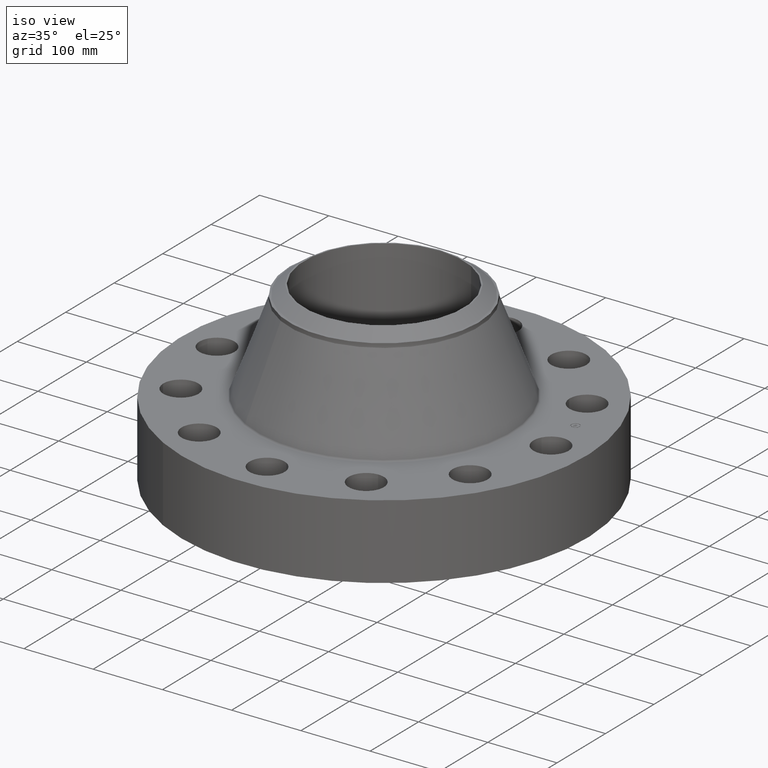
[diagram: clean part render]
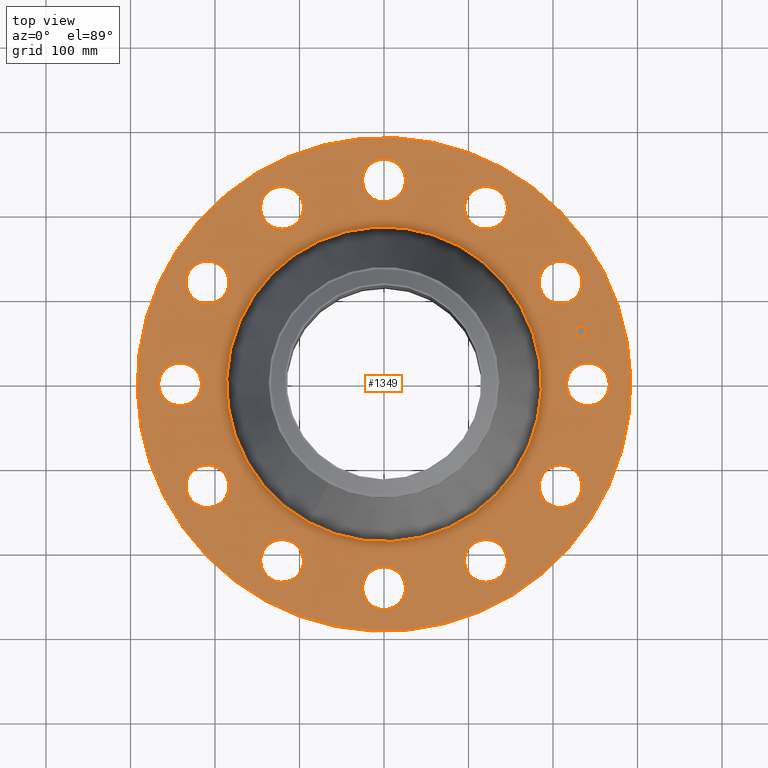
[diagram: tour spotlight — one face highlighted and labeled with its STEP entity id]
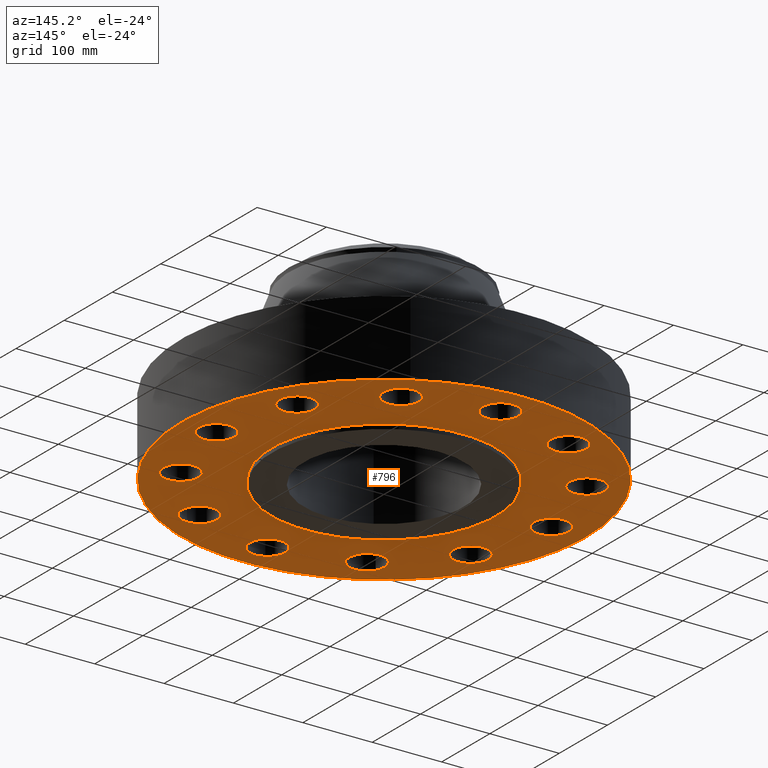
[diagram: tour spotlight — one face highlighted and labeled with its STEP entity id]
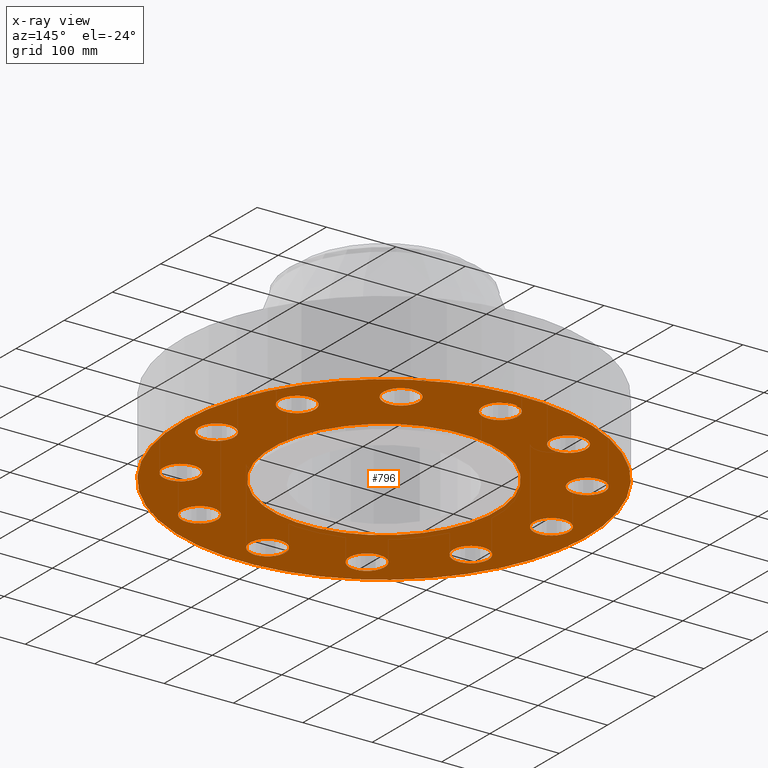
[diagram: x-ray of the same camera — body ghosted, this tour face saturated]
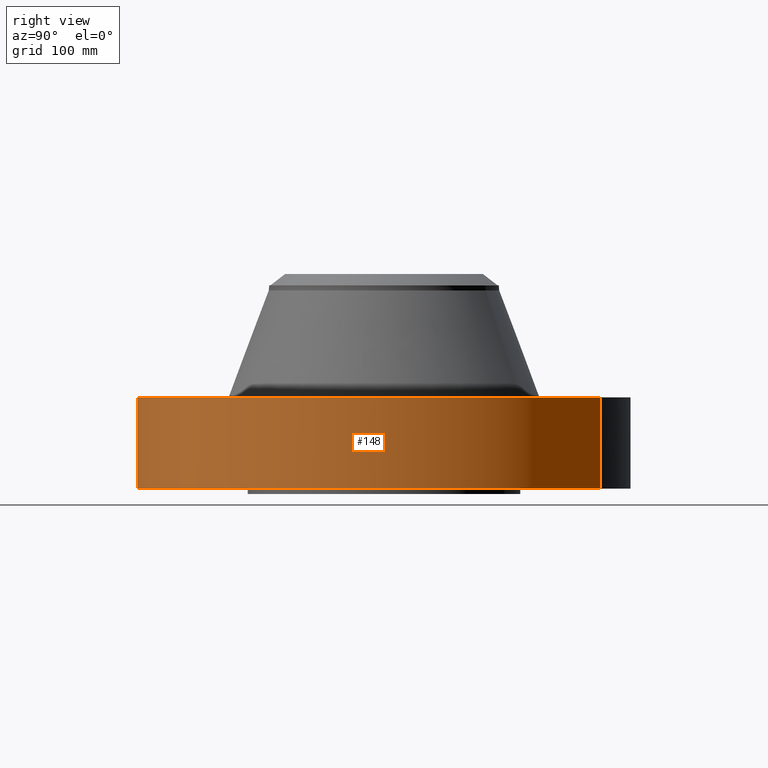
[diagram: tour spotlight — one face highlighted and labeled with its STEP entity id]
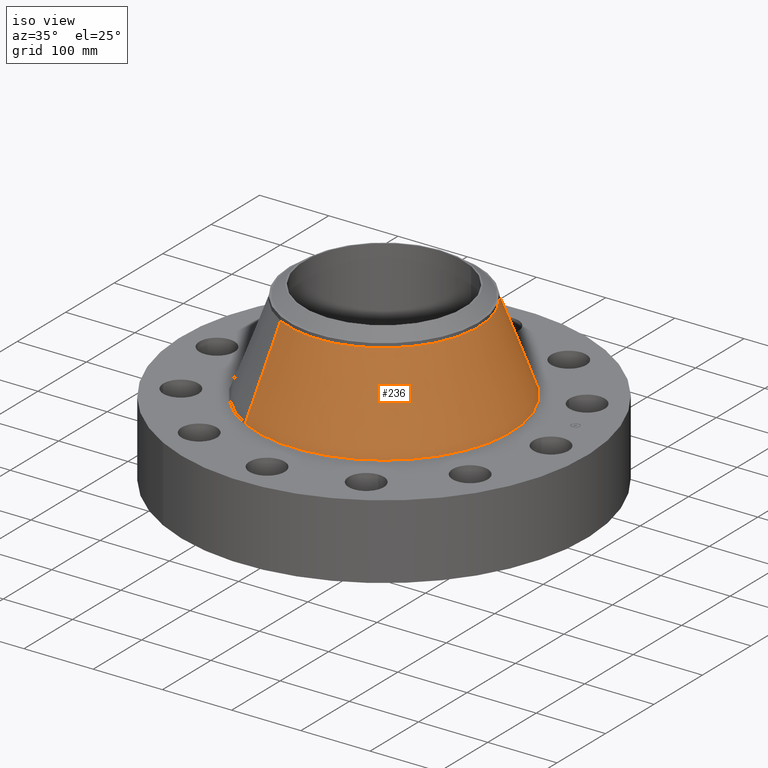
[diagram: tour spotlight — one face highlighted and labeled with its STEP entity id]
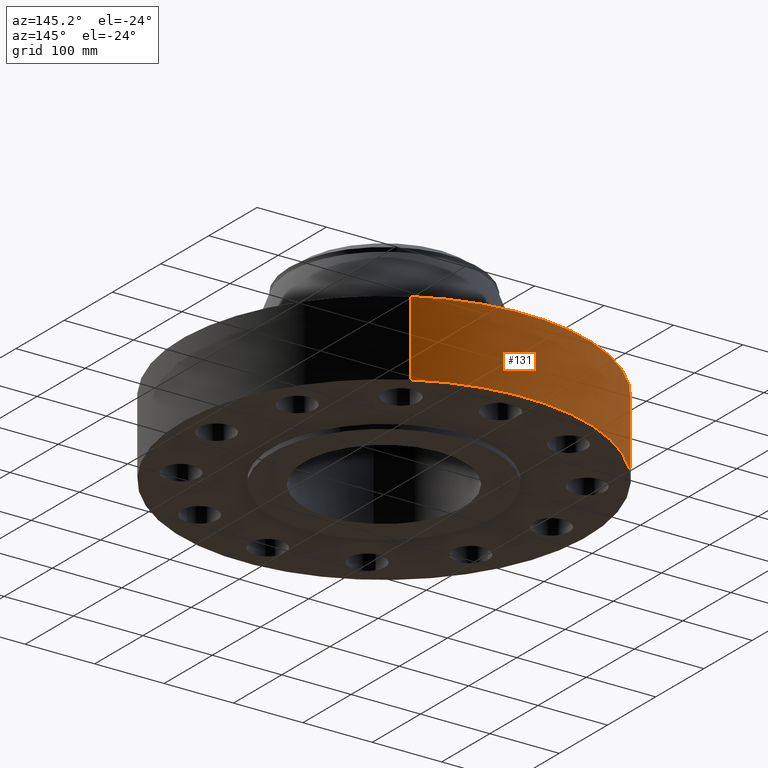
[diagram: tour spotlight — one face highlighted and labeled with its STEP entity id]
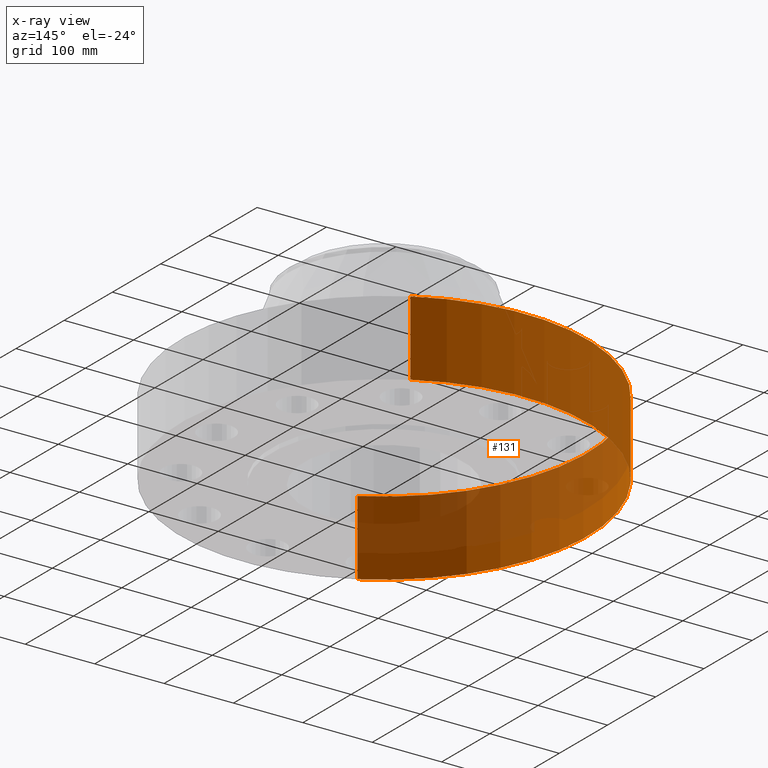
[diagram: x-ray of the same camera — body ghosted, this tour face saturated]
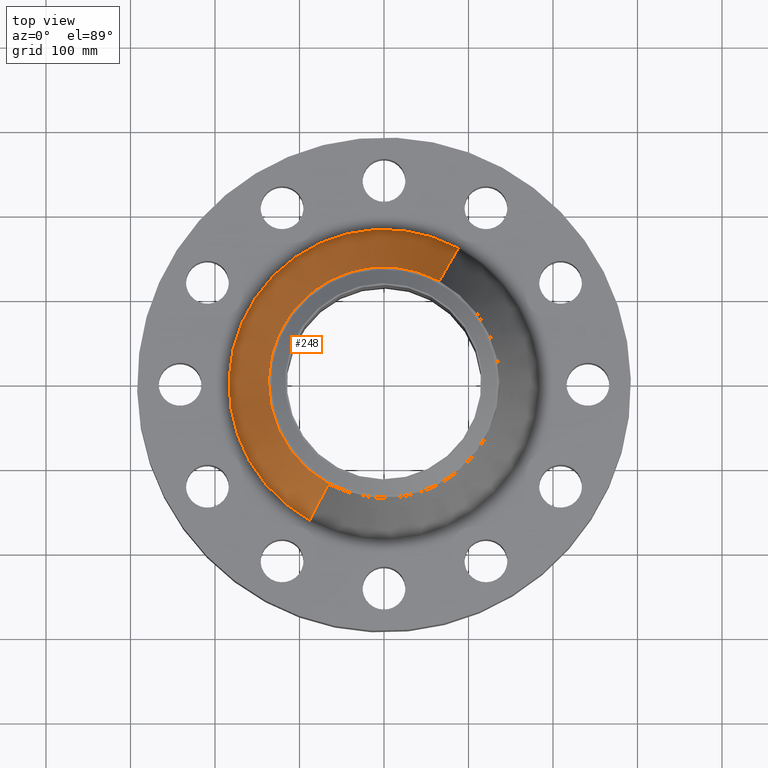
[diagram: tour spotlight — one face highlighted and labeled with its STEP entity id]
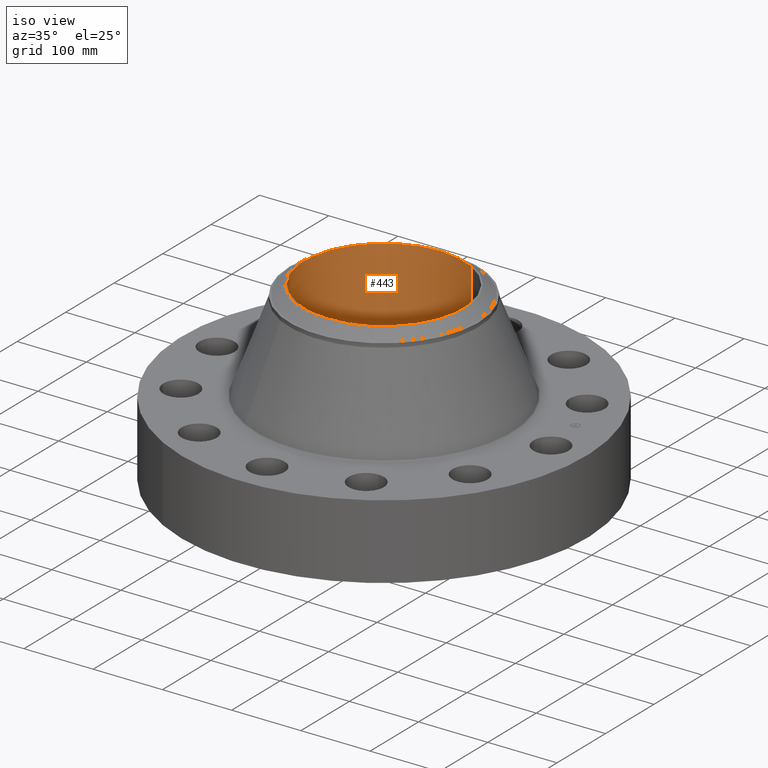
[diagram: tour spotlight — one face highlighted and labeled with its STEP entity id]
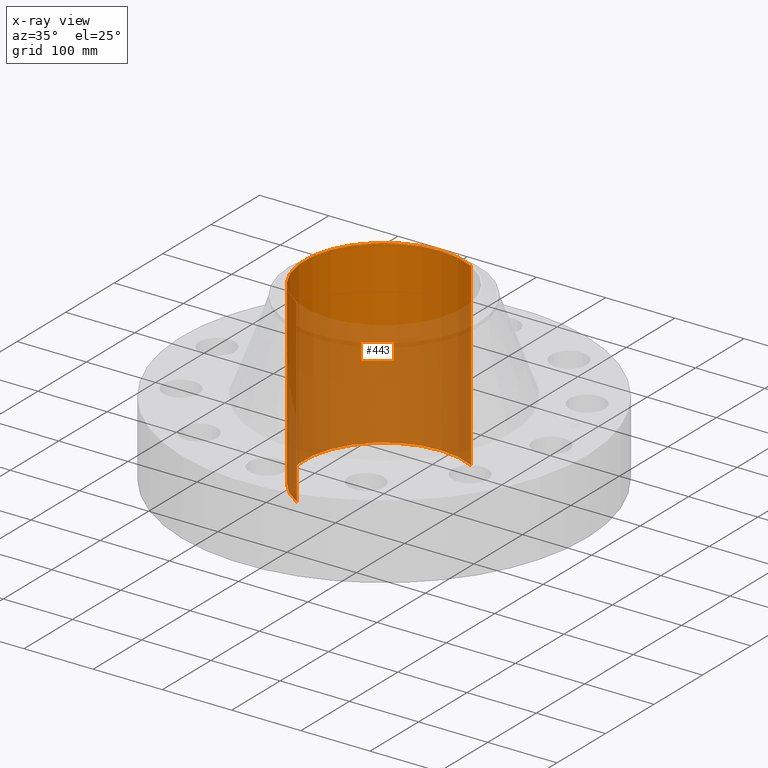
[diagram: x-ray of the same camera — body ghosted, this tour face saturated]
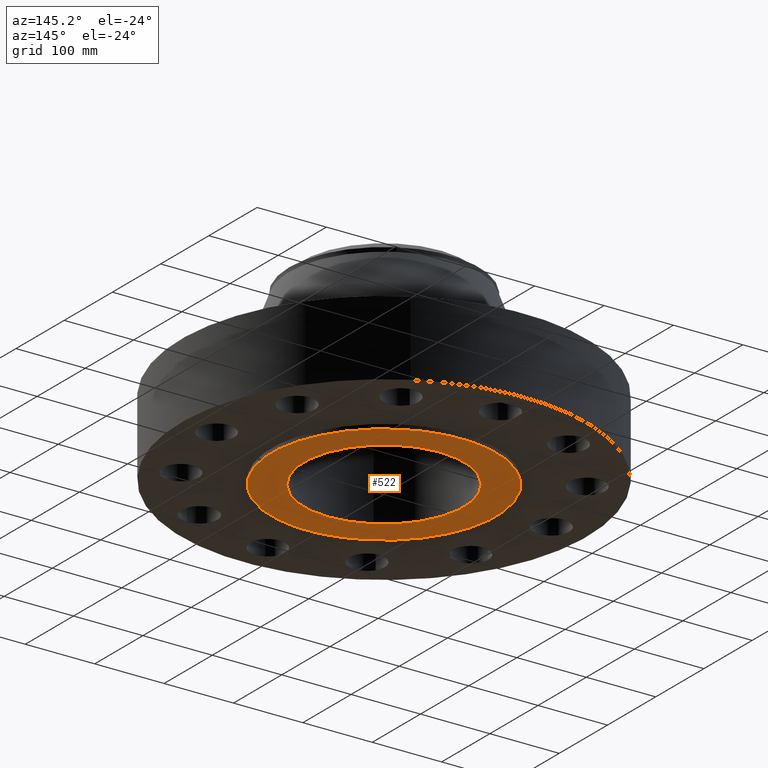
[diagram: tour spotlight — one face highlighted and labeled with its STEP entity id]
A machine part: a face-by-face anatomy tour. The part has 431 B-rep faces; the first image is the clean iso view, then the 8 largest visible faces are spotlighted one at a time (largest first), each with its STEP entity span.

Face 1 — top view, entity #1349. In plain terms, the highlighted planar face has unit normal (0, 0, -1).
Definition (entity closure, byte-faithful):
#65=AXIS2_PLACEMENT_3D('Circle Axis2P3D',#63,#64,$) ;
#82=AXIS2_PLACEMENT_3D('Circle Axis2P3D',#80,#81,$) ;
#115=AXIS2_PLACEMENT_3D('Circle Axis2P3D',#113,#114,$) ;
#139=AXIS2_PLACEMENT_3D('Circle Axis2P3D',#137,#138,$) ;
#156=AXIS2_PLACEMENT_3D('Circle Axis2P3D',#154,#155,$) ;
#191=AXIS2_PLACEMENT_3D('Circle Axis2P3D',#189,#190,$) ;
#818=AXIS2_PLACEMENT_3D('Circle Axis2P3D',#816,#817,$) ;
#830=AXIS2_PLACEMENT_3D('Circle Axis2P3D',#828,#829,$) ;
#861=AXIS2_PLACEMENT_3D('Circle Axis2P3D',#859,#860,$) ;
#873=AXIS2_PLACEMENT_3D('Circle Axis2P3D',#871,#872,$) ;
#904=AXIS2_PLACEMENT_3D('Circle Axis2P3D',#902,#903,$) ;
#916=AXIS2_PLACEMENT_3D('Circle Axis2P3D',#914,#915,$) ;
#947=AXIS2_PLACEMENT_3D('Circle Axis2P3D',#945,#946,$) ;
#959=AXIS2_PLACEMENT_3D('Circle Axis2P3D',#957,#958,$) ;
#990=AXIS2_PLACEMENT_3D('Circle Axis2P3D',#988,#989,$) ;
#1002=AXIS2_PLACEMENT_3D('Circle Axis2P3D',#1000,#1001,$) ;
#1033=AXIS2_PLACEMENT_3D('Circle Axis2P3D',#1031,#1032,$) ;
#1045=AXIS2_PLACEMENT_3D('Circle Axis2P3D',#1043,#1044,$) ;
#1076=AXIS2_PLACEMENT_3D('Circle Axis2P3D',#1074,#1075,$) ;
#1088=AXIS2_PLACEMENT_3D('Circle Axis2P3D',#1086,#1087,$) ;
#1119=AXIS2_PLACEMENT_3D('Circle Axis2P3D',#1117,#1118,$) ;
#1131=AXIS2_PLACEMENT_3D('Circle Axis2P3D',#1129,#1130,$) ;
#1162=AXIS2_PLACEMENT_3D('Circle Axis2P3D',#1160,#1161,$) ;
#1174=AXIS2_PLACEMENT_3D('Circle Axis2P3D',#1172,#1173,$) ;
#1205=AXIS2_PLACEMENT_3D('Circle Axis2P3D',#1203,#1204,$) ;
#1217=AXIS2_PLACEMENT_3D('Circle Axis2P3D',#1215,#1216,$) ;
#1248=AXIS2_PLACEMENT_3D('Circle Axis2P3D',#1246,#1247,$) ;
#1260=AXIS2_PLACEMENT_3D('Circle Axis2P3D',#1258,#1259,$) ;
#1273=AXIS2_PLACEMENT_3D('Plane Axis2P3D',#1270,#1271,#1272) ;
#1333=AXIS2_PLACEMENT_3D('Circle Axis2P3D',#1331,#1332,$) ;
#1342=AXIS2_PLACEMENT_3D('Circle Axis2P3D',#1340,#1341,$) ;
#46=CARTESIAN_POINT('Vertex',(8.62241743814,0.479425538606,4.25000000002)) ;
#60=CARTESIAN_POINT('Vertex',(10.3775825619,-0.479425538606,4.25000000002)) ;
#63=CARTESIAN_POINT('Axis2P3D Location',(9.50000000004,0.,4.25000000002)) ;
#80=CARTESIAN_POINT('Axis2P3D Location',(9.50000000004,0.,4.25000000002)) ;
#110=CARTESIAN_POINT('Vertex',(-5.51339369397,-10.0921994618,4.25000000002)) ;
#113=CARTESIAN_POINT('Axis2P3D Location',(0.,0.,4.25000000002)) ;
#117=CARTESIAN_POINT('Vertex',(5.51339369397,10.0921994618,4.25000000002)) ;
#137=CARTESIAN_POINT('Axis2P3D Location',(0.,0.,4.25000000002)) ;
#154=CARTESIAN_POINT('Axis2P3D Location',(0.,0.,4.25000000002)) ;
#158=CARTESIAN_POINT('Vertex',(3.51565731225,6.43536754382,4.25000000002)) ;
#160=CARTESIAN_POINT('Vertex',(-3.51565731225,-6.43536754382,4.25000000002)) ;
#189=CARTESIAN_POINT('Axis2P3D Location',(0.,0.,4.25000000002)) ;
#806=CARTESIAN_POINT('Vertex',(-7.70694531277,3.89601402342,4.25000000002)) ;
#813=CARTESIAN_POINT('Vertex',(-8.7475373592,5.60398597662,4.25000000002)) ;
#816=CARTESIAN_POINT('Axis2P3D Location',(-8.22724133599,4.75000000002,4.25000000002)) ;
#828=CARTESIAN_POINT('Axis2P3D Location',(-8.22724133599,4.75000000002,4.25000000002)) ;
#849=CARTESIAN_POINT('Vertex',(4.72640341473,-7.22751977416,4.25000000002)) ;
#856=CARTESIAN_POINT('Vertex',(4.77359658531,-9.22696289781,4.25000000002)) ;
#859=CARTESIAN_POINT('Axis2P3D Location',(4.75000000002,-8.22724133599,4.25000000002)) ;
#871=CARTESIAN_POINT('Axis2P3D Location',(4.75000000002,-8.22724133599,4.25000000002)) ;
#892=CARTESIAN_POINT('Vertex',(-4.72640341473,7.22751977416,4.25000000002)) ;
#899=CARTESIAN_POINT('Vertex',(-4.77359658531,9.22696289781,4.25000000002)) ;
#902=CARTESIAN_POINT('Axis2P3D Location',(-4.75000000002,8.22724133599,4.25000000002)) ;
#914=CARTESIAN_POINT('Axis2P3D Location',(-4.75000000002,8.22724133599,4.25000000002)) ;
#935=CARTESIAN_POINT('Vertex',(0.479425538606,-8.62241743814,4.25000000002)) ;
#942=CARTESIAN_POINT('Vertex',(-0.479425538606,-10.3775825619,4.25000000002)) ;
#945=CARTESIAN_POINT('Axis2P3D Location',(-5.37257708608E-016,-9.50000000004,4.25000000002)) ;
#957=CARTESIAN_POINT('Axis2P3D Location',(-5.37257708608E-016,-9.50000000004,4.25000000002)) ;
#978=CARTESIAN_POINT('Vertex',(-0.479425538606,8.62241743814,4.25000000002)) ;
#985=CARTESIAN_POINT('Vertex',(0.479425538606,10.3775825619,4.25000000002)) ;
#988=CARTESIAN_POINT('Axis2P3D Location',(-6.26156750587E-016,9.50000000004,4.25000000002)) ;
#1000=CARTESIAN_POINT('Axis2P3D Location',(-6.26156750587E-016,9.50000000004,4.25000000002)) ;
#1021=CARTESIAN_POINT('Vertex',(-3.89601402342,-7.70694531277,4.25000000002)) ;
#1028=CARTESIAN_POINT('Vertex',(-5.60398597662,-8.7475373592,4.25000000002)) ;
#1031=CARTESIAN_POINT('Axis2P3D Location',(-4.75000000002,-8.22724133599,4.25000000002)) ;
#1043=CARTESIAN_POINT('Axis2P3D Location',(-4.75000000002,-8.22724133599,4.25000000002)) ;
#1064=CARTESIAN_POINT('Vertex',(3.89601402342,7.70694531277,4.25000000002)) ;
#1071=CARTESIAN_POINT('Vertex',(5.60398597662,8.7475373592,4.25000000002)) ;
#1074=CARTESIAN_POINT('Axis2P3D Location',(4.75000000002,8.22724133599,4.25000000002)) ;
#1086=CARTESIAN_POINT('Axis2P3D Location',(4.75000000002,8.22724133599,4.25000000002)) ;
#1107=CARTESIAN_POINT('Vertex',(-7.22751977416,-4.72640341473,4.25000000002)) ;
#1114=CARTESIAN_POINT('Vertex',(-9.22696289781,-4.77359658531,4.25000000002)) ;
#1117=CARTESIAN_POINT('Axis2P3D Location',(-8.22724133599,-4.75000000002,4.25000000002)) ;
#1129=CARTESIAN_POINT('Axis2P3D Location',(-8.22724133599,-4.75000000002,4.25000000002)) ;
#1150=CARTESIAN_POINT('Vertex',(7.22751977416,4.72640341473,4.25000000002)) ;
#1157=CARTESIAN_POINT('Vertex',(9.22696289781,4.77359658531,4.25000000002)) ;
#1160=CARTESIAN_POINT('Axis2P3D Location',(8.22724133599,4.75000000002,4.25000000002)) ;
#1172=CARTESIAN_POINT('Axis2P3D Location',(8.22724133599,4.75000000002,4.25000000002)) ;
#1193=CARTESIAN_POINT('Vertex',(-8.62241743814,-0.479425538606,4.25000000002)) ;
#1200=CARTESIAN_POINT('Vertex',(-10.3775825619,0.479425538606,4.25000000002)) ;
#1203=CARTESIAN_POINT('Axis2P3D Location',(-9.50000000004,-1.16341445919E-015,4.25000000002)) ;
#1215=CARTESIAN_POINT('Axis2P3D Location',(-9.50000000004,-1.16341445919E-015,4.25000000002)) ;
#1236=CARTESIAN_POINT('Vertex',(7.70694531277,-3.89601402342,4.25000000002)) ;
#1243=CARTESIAN_POINT('Vertex',(8.7475373592,-5.60398597662,4.25000000002)) ;
#1246=CARTESIAN_POINT('Axis2P3D Location',(8.22724133599,-4.75000000002,4.25000000002)) ;
#1258=CARTESIAN_POINT('Axis2P3D Location',(8.22724133599,-4.75000000002,4.25000000002)) ;
#1270=CARTESIAN_POINT('Axis2P3D Location',(0.,11.5,4.25000000002)) ;
#1331=CARTESIAN_POINT('Axis2P3D Location',(9.17629534978,2.45878092848,4.25000000002)) ;
#1335=CARTESIAN_POINT('Vertex',(9.11223763612,2.69784757049,4.25000000002)) ;
#1337=CARTESIAN_POINT('Vertex',(9.24035306345,2.21971428648,4.25000000002)) ;
#1340=CARTESIAN_POINT('Axis2P3D Location',(9.17629534978,2.45878092848,4.25000000002)) ;
#64=DIRECTION('Axis2P3D Direction',(0.,-0.,-0.0393700787402)) ;
#81=DIRECTION('Axis2P3D Direction',(0.,-0.,-0.0393700787402)) ;
#114=DIRECTION('Axis2P3D Direction',(0.,0.,-0.0393700787402)) ;
#138=DIRECTION('Axis2P3D Direction',(0.,0.,-0.0393700787402)) ;
#155=DIRECTION('Axis2P3D Direction',(0.,0.,-0.0393700787402)) ;
#190=DIRECTION('Axis2P3D Direction',(0.,0.,-0.0393700787402)) ;
#817=DIRECTION('Axis2P3D Direction',(0.,0.,-0.0393700787402)) ;
#829=DIRECTION('Axis2P3D Direction',(0.,0.,-0.0393700787402)) ;
#860=DIRECTION('Axis2P3D Direction',(0.,-0.,-0.0393700787402)) ;
#872=DIRECTION('Axis2P3D Direction',(0.,-0.,-0.0393700787402)) ;
#903=DIRECTION('Axis2P3D Direction',(0.,0.,-0.0393700787402)) ;
#915=DIRECTION('Axis2P3D Direction',(0.,0.,-0.0393700787402)) ;
#946=DIRECTION('Axis2P3D Direction',(0.,-0.,-0.0393700787402)) ;
#958=DIRECTION('Axis2P3D Direction',(0.,-0.,-0.0393700787402)) ;
#989=DIRECTION('Axis2P3D Direction',(0.,0.,-0.0393700787402)) ;
#1001=DIRECTION('Axis2P3D Direction',(0.,0.,-0.0393700787402)) ;
#1032=DIRECTION('Axis2P3D Direction',(-0.,0.,-0.0393700787402)) ;
#1044=DIRECTION('Axis2P3D Direction',(-0.,0.,-0.0393700787402)) ;
#1075=DIRECTION('Axis2P3D Direction',(0.,0.,-0.0393700787402)) ;
#1087=DIRECTION('Axis2P3D Direction',(0.,0.,-0.0393700787402)) ;
#1118=DIRECTION('Axis2P3D Direction',(-0.,0.,-0.0393700787402)) ;
#1130=DIRECTION('Axis2P3D Direction',(-0.,0.,-0.0393700787402)) ;
#1161=DIRECTION('Axis2P3D Direction',(0.,0.,-0.0393700787402)) ;
#1173=DIRECTION('Axis2P3D Direction',(0.,0.,-0.0393700787402)) ;
#1204=DIRECTION('Axis2P3D Direction',(-0.,0.,-0.0393700787402)) ;
#1216=DIRECTION('Axis2P3D Direction',(-0.,0.,-0.0393700787402)) ;
#1247=DIRECTION('Axis2P3D Direction',(0.,-0.,-0.0393700787402)) ;
#1259=DIRECTION('Axis2P3D Direction',(0.,-0.,-0.0393700787402)) ;
#1271=DIRECTION('Axis2P3D Direction',(0.,0.,-0.0393700787402)) ;
#1272=DIRECTION('Axis2P3D XDirection',(0.0393700787402,0.,0.)) ;
#1332=DIRECTION('Axis2P3D Direction',(0.,0.,-0.0393700787402)) ;
#1341=DIRECTION('Axis2P3D Direction',(0.,0.,-0.0393700787402)) ;
#1276=ORIENTED_EDGE('',*,*,#141,.F.) ;
#1277=ORIENTED_EDGE('',*,*,#119,.F.) ;
#1280=ORIENTED_EDGE('',*,*,#67,.T.) ;
#1281=ORIENTED_EDGE('',*,*,#84,.T.) ;
#1284=ORIENTED_EDGE('',*,*,#193,.T.) ;
#1285=ORIENTED_EDGE('',*,*,#162,.T.) ;
#1288=ORIENTED_EDGE('',*,*,#1262,.T.) ;
#1289=ORIENTED_EDGE('',*,*,#1250,.T.) ;
#1292=ORIENTED_EDGE('',*,*,#875,.T.) ;
#1293=ORIENTED_EDGE('',*,*,#863,.T.) ;
#1296=ORIENTED_EDGE('',*,*,#961,.T.) ;
#1297=ORIENTED_EDGE('',*,*,#949,.T.) ;
#1300=ORIENTED_EDGE('',*,*,#1047,.T.) ;
#1301=ORIENTED_EDGE('',*,*,#1035,.T.) ;
#1304=ORIENTED_EDGE('',*,*,#1133,.T.) ;
#1305=ORIENTED_EDGE('',*,*,#1121,.T.) ;
#1308=ORIENTED_EDGE('',*,*,#1219,.T.) ;
#1309=ORIENTED_EDGE('',*,*,#1207,.T.) ;
#1312=ORIENTED_EDGE('',*,*,#832,.T.) ;
#1313=ORIENTED_EDGE('',*,*,#820,.T.) ;
#1316=ORIENTED_EDGE('',*,*,#918,.T.) ;
#1317=ORIENTED_EDGE('',*,*,#906,.T.) ;
#1320=ORIENTED_EDGE('',*,*,#1004,.T.) ;
#1321=ORIENTED_EDGE('',*,*,#992,.T.) ;
#1324=ORIENTED_EDGE('',*,*,#1090,.T.) ;
#1325=ORIENTED_EDGE('',*,*,#1078,.T.) ;
#1328=ORIENTED_EDGE('',*,*,#1176,.T.) ;
#1329=ORIENTED_EDGE('',*,*,#1164,.T.) ;
#1346=ORIENTED_EDGE('',*,*,#1339,.T.) ;
#1347=ORIENTED_EDGE('',*,*,#1344,.T.) ;
#1282=FACE_BOUND('',#1279,.T.) ;
#1286=FACE_BOUND('',#1283,.T.) ;
#1290=FACE_BOUND('',#1287,.T.) ;
#1294=FACE_BOUND('',#1291,.T.) ;
#1298=FACE_BOUND('',#1295,.T.) ;
#1302=FACE_BOUND('',#1299,.T.) ;
#1306=FACE_BOUND('',#1303,.T.) ;
#1310=FACE_BOUND('',#1307,.T.) ;
#1314=FACE_BOUND('',#1311,.T.) ;
#1318=FACE_BOUND('',#1315,.T.) ;
#1322=FACE_BOUND('',#1319,.T.) ;
#1326=FACE_BOUND('',#1323,.T.) ;
#1330=FACE_BOUND('',#1327,.T.) ;
#1348=FACE_BOUND('',#1345,.T.) ;
#1349=ADVANCED_FACE('PartBody',(#1278,#1282,#1286,#1290,#1294,#1298,#1302,#1306,#1310,#1314,#1318,#1322,#1326,#1330,#1348),#1274,.F.) ;
#66=CIRCLE('generated circle',#65,1.) ;
#83=CIRCLE('generated circle',#82,1.) ;
#116=CIRCLE('generated circle',#115,11.5) ;
#140=CIRCLE('generated circle',#139,11.5) ;
#157=CIRCLE('generated circle',#156,7.33306223628) ;
#192=CIRCLE('generated circle',#191,7.33306223628) ;
#819=CIRCLE('generated circle',#818,1.) ;
#831=CIRCLE('generated circle',#830,1.) ;
#862=CIRCLE('generated circle',#861,1.) ;
#874=CIRCLE('generated circle',#873,1.) ;
#905=CIRCLE('generated circle',#904,1.) ;
#917=CIRCLE('generated circle',#916,1.) ;
#948=CIRCLE('generated circle',#947,1.) ;
#960=CIRCLE('generated circle',#959,1.) ;
#991=CIRCLE('generated circle',#990,1.) ;
#1003=CIRCLE('generated circle',#1002,1.) ;
#1034=CIRCLE('generated circle',#1033,1.) ;
#1046=CIRCLE('generated circle',#1045,1.) ;
#1077=CIRCLE('generated circle',#1076,1.) ;
#1089=CIRCLE('generated circle',#1088,1.) ;
#1120=CIRCLE('generated circle',#1119,1.) ;
#1132=CIRCLE('generated circle',#1131,1.) ;
#1163=CIRCLE('generated circle',#1162,1.) ;
#1175=CIRCLE('generated circle',#1174,1.) ;
#1206=CIRCLE('generated circle',#1205,1.) ;
#1218=CIRCLE('generated circle',#1217,1.) ;
#1249=CIRCLE('generated circle',#1248,1.) ;
#1261=CIRCLE('generated circle',#1260,1.) ;
#1334=CIRCLE('generated circle',#1333,0.247500000001) ;
#1343=CIRCLE('generated circle',#1342,0.247500000001) ;
#67=EDGE_CURVE('',#47,#61,#66,.T.) ;
#84=EDGE_CURVE('',#61,#47,#83,.T.) ;
#119=EDGE_CURVE('',#111,#118,#116,.T.) ;
#141=EDGE_CURVE('',#118,#111,#140,.T.) ;
#162=EDGE_CURVE('',#159,#161,#157,.T.) ;
#193=EDGE_CURVE('',#161,#159,#192,.T.) ;
#820=EDGE_CURVE('',#807,#814,#819,.T.) ;
#832=EDGE_CURVE('',#814,#807,#831,.T.) ;
#863=EDGE_CURVE('',#850,#857,#862,.T.) ;
#875=EDGE_CURVE('',#857,#850,#874,.T.) ;
#906=EDGE_CURVE('',#893,#900,#905,.T.) ;
#918=EDGE_CURVE('',#900,#893,#917,.T.) ;
#949=EDGE_CURVE('',#936,#943,#948,.T.) ;
#961=EDGE_CURVE('',#943,#936,#960,.T.) ;
#992=EDGE_CURVE('',#979,#986,#991,.T.) ;
#1004=EDGE_CURVE('',#986,#979,#1003,.T.) ;
#1035=EDGE_CURVE('',#1022,#1029,#1034,.T.) ;
#1047=EDGE_CURVE('',#1029,#1022,#1046,.T.) ;
#1078=EDGE_CURVE('',#1065,#1072,#1077,.T.) ;
#1090=EDGE_CURVE('',#1072,#1065,#1089,.T.) ;
#1121=EDGE_CURVE('',#1108,#1115,#1120,.T.) ;
#1133=EDGE_CURVE('',#1115,#1108,#1132,.T.) ;
#1164=EDGE_CURVE('',#1151,#1158,#1163,.T.) ;
#1176=EDGE_CURVE('',#1158,#1151,#1175,.T.) ;
#1207=EDGE_CURVE('',#1194,#1201,#1206,.T.) ;
#1219=EDGE_CURVE('',#1201,#1194,#1218,.T.) ;
#1250=EDGE_CURVE('',#1237,#1244,#1249,.T.) ;
#1262=EDGE_CURVE('',#1244,#1237,#1261,.T.) ;
#1339=EDGE_CURVE('',#1336,#1338,#1334,.T.) ;
#1344=EDGE_CURVE('',#1338,#1336,#1343,.T.) ;
#1275=EDGE_LOOP('',(#1276,#1277)) ;
#1279=EDGE_LOOP('',(#1280,#1281)) ;
#1283=EDGE_LOOP('',(#1284,#1285)) ;
#1287=EDGE_LOOP('',(#1288,#1289)) ;
#1291=EDGE_LOOP('',(#1292,#1293)) ;
#1295=EDGE_LOOP('',(#1296,#1297)) ;
#1299=EDGE_LOOP('',(#1300,#1301)) ;
#1303=EDGE_LOOP('',(#1304,#1305)) ;
#1307=EDGE_LOOP('',(#1308,#1309)) ;
#1311=EDGE_LOOP('',(#1312,#1313)) ;
#1315=EDGE_LOOP('',(#1316,#1317)) ;
#1319=EDGE_LOOP('',(#1320,#1321)) ;
#1323=EDGE_LOOP('',(#1324,#1325)) ;
#1327=EDGE_LOOP('',(#1328,#1329)) ;
#1345=EDGE_LOOP('',(#1346,#1347)) ;
#1278=FACE_OUTER_BOUND('',#1275,.T.) ;
#1274=PLANE('',#1273) ;
#47=VERTEX_POINT('',#46) ;
#61=VERTEX_POINT('',#60) ;
#111=VERTEX_POINT('',#110) ;
#118=VERTEX_POINT('',#117) ;
#159=VERTEX_POINT('',#158) ;
#161=VERTEX_POINT('',#160) ;
#807=VERTEX_POINT('',#806) ;
#814=VERTEX_POINT('',#813) ;
#850=VERTEX_POINT('',#849) ;
#857=VERTEX_POINT('',#856) ;
#893=VERTEX_POINT('',#892) ;
#900=VERTEX_POINT('',#899) ;
#936=VERTEX_POINT('',#935) ;
#943=VERTEX_POINT('',#942) ;
#979=VERTEX_POINT('',#978) ;
#986=VERTEX_POINT('',#985) ;
#1022=VERTEX_POINT('',#1021) ;
#1029=VERTEX_POINT('',#1028) ;
#1065=VERTEX_POINT('',#1064) ;
#1072=VERTEX_POINT('',#1071) ;
#1108=VERTEX_POINT('',#1107) ;
#1115=VERTEX_POINT('',#1114) ;
#1151=VERTEX_POINT('',#1150) ;
#1158=VERTEX_POINT('',#1157) ;
#1194=VERTEX_POINT('',#1193) ;
#1201=VERTEX_POINT('',#1200) ;
#1237=VERTEX_POINT('',#1236) ;
#1244=VERTEX_POINT('',#1243) ;
#1336=VERTEX_POINT('',#1335) ;
#1338=VERTEX_POINT('',#1337) ;

Face 2 — auxiliary view, entity #796. An x-ray twin of the same camera follows (body ghosted, this face saturated) — the face is partly hidden behind the body. In plain terms, the highlighted planar face has unit normal (0, 0, -1).
Definition (entity closure, byte-faithful):
#51=AXIS2_PLACEMENT_3D('Circle Axis2P3D',#49,#50,$) ;
#77=AXIS2_PLACEMENT_3D('Circle Axis2P3D',#75,#76,$) ;
#99=AXIS2_PLACEMENT_3D('Circle Axis2P3D',#97,#98,$) ;
#134=AXIS2_PLACEMENT_3D('Circle Axis2P3D',#132,#133,$) ;
#552=AXIS2_PLACEMENT_3D('Circle Axis2P3D',#550,#551,$) ;
#571=AXIS2_PLACEMENT_3D('Circle Axis2P3D',#569,#570,$) ;
#584=AXIS2_PLACEMENT_3D('Plane Axis2P3D',#581,#582,#583) ;
#600=AXIS2_PLACEMENT_3D('Circle Axis2P3D',#598,#599,$) ;
#609=AXIS2_PLACEMENT_3D('Circle Axis2P3D',#607,#608,$) ;
#618=AXIS2_PLACEMENT_3D('Circle Axis2P3D',#616,#617,$) ;
#627=AXIS2_PLACEMENT_3D('Circle Axis2P3D',#625,#626,$) ;
#636=AXIS2_PLACEMENT_3D('Circle Axis2P3D',#634,#635,$) ;
#645=AXIS2_PLACEMENT_3D('Circle Axis2P3D',#643,#644,$) ;
#654=AXIS2_PLACEMENT_3D('Circle Axis2P3D',#652,#653,$) ;
#663=AXIS2_PLACEMENT_3D('Circle Axis2P3D',#661,#662,$) ;
#672=AXIS2_PLACEMENT_3D('Circle Axis2P3D',#670,#671,$) ;
#681=AXIS2_PLACEMENT_3D('Circle Axis2P3D',#679,#680,$) ;
#690=AXIS2_PLACEMENT_3D('Circle Axis2P3D',#688,#689,$) ;
#699=AXIS2_PLACEMENT_3D('Circle Axis2P3D',#697,#698,$) ;
#708=AXIS2_PLACEMENT_3D('Circle Axis2P3D',#706,#707,$) ;
#717=AXIS2_PLACEMENT_3D('Circle Axis2P3D',#715,#716,$) ;
#726=AXIS2_PLACEMENT_3D('Circle Axis2P3D',#724,#725,$) ;
#735=AXIS2_PLACEMENT_3D('Circle Axis2P3D',#733,#734,$) ;
#744=AXIS2_PLACEMENT_3D('Circle Axis2P3D',#742,#743,$) ;
#753=AXIS2_PLACEMENT_3D('Circle Axis2P3D',#751,#752,$) ;
#762=AXIS2_PLACEMENT_3D('Circle Axis2P3D',#760,#761,$) ;
#771=AXIS2_PLACEMENT_3D('Circle Axis2P3D',#769,#770,$) ;
#780=AXIS2_PLACEMENT_3D('Circle Axis2P3D',#778,#779,$) ;
#789=AXIS2_PLACEMENT_3D('Circle Axis2P3D',#787,#788,$) ;
#44=CARTESIAN_POINT('Vertex',(8.62241743814,0.479425538606,0.)) ;
#49=CARTESIAN_POINT('Axis2P3D Location',(9.50000000004,0.,0.)) ;
#53=CARTESIAN_POINT('Vertex',(10.3775825619,-0.479425538606,0.)) ;
#75=CARTESIAN_POINT('Axis2P3D Location',(9.50000000004,0.,0.)) ;
#97=CARTESIAN_POINT('Axis2P3D Location',(0.,0.,1.1189649382E-015)) ;
#101=CARTESIAN_POINT('Vertex',(-5.51339369397,-10.0921994618,1.67844740731E-015)) ;
#103=CARTESIAN_POINT('Vertex',(5.51339369397,10.0921994618,1.67844740731E-015)) ;
#132=CARTESIAN_POINT('Axis2P3D Location',(0.,0.,1.1189649382E-015)) ;
#547=CARTESIAN_POINT('Vertex',(-3.05633780861,-5.59458883207,5.59482469102E-016)) ;
#550=CARTESIAN_POINT('Axis2P3D Location',(0.,0.,5.59482469102E-016)) ;
#554=CARTESIAN_POINT('Vertex',(3.05633780861,5.59458883207,5.59482469102E-016)) ;
#569=CARTESIAN_POINT('Axis2P3D Location',(0.,0.,5.59482469102E-016)) ;
#581=CARTESIAN_POINT('Axis2P3D Location',(0.,6.37500000003,0.)) ;
#598=CARTESIAN_POINT('Axis2P3D Location',(8.22724133599,-4.75000000002,0.)) ;
#602=CARTESIAN_POINT('Vertex',(7.70694531277,-3.89601402342,0.)) ;
#604=CARTESIAN_POINT('Vertex',(8.7475373592,-5.60398597662,0.)) ;
#607=CARTESIAN_POINT('Axis2P3D Location',(8.22724133599,-4.75000000002,0.)) ;
#616=CARTESIAN_POINT('Axis2P3D Location',(4.75000000002,-8.22724133599,0.)) ;
#620=CARTESIAN_POINT('Vertex',(4.72640341473,-7.22751977416,0.)) ;
#622=CARTESIAN_POINT('Vertex',(4.77359658531,-9.22696289781,0.)) ;
#625=CARTESIAN_POINT('Axis2P3D Location',(4.75000000002,-8.22724133599,0.)) ;
#634=CARTESIAN_POINT('Axis2P3D Location',(-5.59482469102E-016,-9.50000000004,0.)) ;
#638=CARTESIAN_POINT('Vertex',(0.479425538606,-8.62241743814,0.)) ;
#640=CARTESIAN_POINT('Vertex',(-0.479425538606,-10.3775825619,0.)) ;
#643=CARTESIAN_POINT('Axis2P3D Location',(-6.99353086378E-016,-9.50000000004,0.)) ;
#652=CARTESIAN_POINT('Axis2P3D Location',(-4.75000000002,-8.22724133599,0.)) ;
#656=CARTESIAN_POINT('Vertex',(-3.89601402342,-7.70694531277,0.)) ;
#658=CARTESIAN_POINT('Vertex',(-5.60398597662,-8.7475373592,-3.35689481461E-015)) ;
#661=CARTESIAN_POINT('Axis2P3D Location',(-4.75000000002,-8.22724133599,0.)) ;
#670=CARTESIAN_POINT('Axis2P3D Location',(-8.22724133599,-4.75000000002,0.)) ;
#674=CARTESIAN_POINT('Vertex',(-7.22751977416,-4.72640341473,0.)) ;
#676=CARTESIAN_POINT('Vertex',(-9.22696289781,-4.77359658531,0.)) ;
#679=CARTESIAN_POINT('Axis2P3D Location',(-8.22724133599,-4.75000000002,0.)) ;
#688=CARTESIAN_POINT('Axis2P3D Location',(-9.50000000004,-1.1189649382E-015,0.)) ;
#692=CARTESIAN_POINT('Vertex',(-8.62241743814,-0.479425538606,0.)) ;
#694=CARTESIAN_POINT('Vertex',(-10.3775825619,0.479425538606,0.)) ;
#697=CARTESIAN_POINT('Axis2P3D Location',(-9.50000000004,-1.1189649382E-015,0.)) ;
#706=CARTESIAN_POINT('Axis2P3D Location',(-8.22724133599,4.75000000002,0.)) ;
#710=CARTESIAN_POINT('Vertex',(-7.70694531277,3.89601402342,0.)) ;
#712=CARTESIAN_POINT('Vertex',(-8.7475373592,5.60398597662,0.)) ;
#715=CARTESIAN_POINT('Axis2P3D Location',(-8.22724133599,4.75000000002,0.)) ;
#724=CARTESIAN_POINT('Axis2P3D Location',(-4.75000000002,8.22724133599,0.)) ;
#728=CARTESIAN_POINT('Vertex',(-4.72640341473,7.22751977416,0.)) ;
#730=CARTESIAN_POINT('Vertex',(-4.77359658531,9.22696289781,0.)) ;
#733=CARTESIAN_POINT('Axis2P3D Location',(-4.75000000002,8.22724133599,0.)) ;
#742=CARTESIAN_POINT('Axis2P3D Location',(-1.1189649382E-015,9.50000000004,0.)) ;
#746=CARTESIAN_POINT('Vertex',(-0.479425538606,8.62241743814,0.)) ;
#748=CARTESIAN_POINT('Vertex',(0.479425538606,10.3775825619,0.)) ;
#751=CARTESIAN_POINT('Axis2P3D Location',(-5.59482469102E-016,9.50000000004,0.)) ;
#760=CARTESIAN_POINT('Axis2P3D Location',(4.75000000002,8.22724133599,0.)) ;
#764=CARTESIAN_POINT('Vertex',(3.89601402342,7.70694531277,0.)) ;
#766=CARTESIAN_POINT('Vertex',(5.60398597662,8.7475373592,0.)) ;
#769=CARTESIAN_POINT('Axis2P3D Location',(4.75000000002,8.22724133599,0.)) ;
#778=CARTESIAN_POINT('Axis2P3D Location',(8.22724133599,4.75000000002,0.)) ;
#782=CARTESIAN_POINT('Vertex',(7.22751977416,4.72640341473,0.)) ;
#784=CARTESIAN_POINT('Vertex',(9.22696289781,4.77359658531,0.)) ;
#787=CARTESIAN_POINT('Axis2P3D Location',(8.22724133599,4.75000000002,0.)) ;
#50=DIRECTION('Axis2P3D Direction',(0.,-0.,-0.0393700787402)) ;
#76=DIRECTION('Axis2P3D Direction',(0.,-0.,-0.0393700787402)) ;
#98=DIRECTION('Axis2P3D Direction',(0.,0.,-0.0393700787402)) ;
#133=DIRECTION('Axis2P3D Direction',(0.,0.,-0.0393700787402)) ;
#551=DIRECTION('Axis2P3D Direction',(0.,0.,-0.0393700787402)) ;
#570=DIRECTION('Axis2P3D Direction',(0.,0.,-0.0393700787402)) ;
#582=DIRECTION('Axis2P3D Direction',(0.,0.,-0.0393700787402)) ;
#583=DIRECTION('Axis2P3D XDirection',(0.0393700787402,0.,0.)) ;
#599=DIRECTION('Axis2P3D Direction',(0.,0.,-0.0393700787402)) ;
#608=DIRECTION('Axis2P3D Direction',(0.,0.,-0.0393700787402)) ;
#617=DIRECTION('Axis2P3D Direction',(0.,0.,-0.0393700787402)) ;
#626=DIRECTION('Axis2P3D Direction',(0.,0.,-0.0393700787402)) ;
#635=DIRECTION('Axis2P3D Direction',(0.,0.,-0.0393700787402)) ;
#644=DIRECTION('Axis2P3D Direction',(0.,0.,-0.0393700787402)) ;
#653=DIRECTION('Axis2P3D Direction',(0.,0.,-0.0393700787402)) ;
#662=DIRECTION('Axis2P3D Direction',(0.,0.,-0.0393700787402)) ;
#671=DIRECTION('Axis2P3D Direction',(0.,0.,-0.0393700787402)) ;
#680=DIRECTION('Axis2P3D Direction',(0.,0.,-0.0393700787402)) ;
#689=DIRECTION('Axis2P3D Direction',(0.,0.,-0.0393700787402)) ;
#698=DIRECTION('Axis2P3D Direction',(0.,0.,-0.0393700787402)) ;
#707=DIRECTION('Axis2P3D Direction',(0.,0.,-0.0393700787402)) ;
#716=DIRECTION('Axis2P3D Direction',(0.,0.,-0.0393700787402)) ;
#725=DIRECTION('Axis2P3D Direction',(0.,0.,-0.0393700787402)) ;
#734=DIRECTION('Axis2P3D Direction',(0.,0.,-0.0393700787402)) ;
#743=DIRECTION('Axis2P3D Direction',(0.,0.,-0.0393700787402)) ;
#752=DIRECTION('Axis2P3D Direction',(0.,0.,-0.0393700787402)) ;
#761=DIRECTION('Axis2P3D Direction',(0.,0.,-0.0393700787402)) ;
#770=DIRECTION('Axis2P3D Direction',(0.,0.,-0.0393700787402)) ;
#779=DIRECTION('Axis2P3D Direction',(0.,0.,-0.0393700787402)) ;
#788=DIRECTION('Axis2P3D Direction',(0.,0.,-0.0393700787402)) ;
#587=ORIENTED_EDGE('',*,*,#105,.T.) ;
#588=ORIENTED_EDGE('',*,*,#136,.T.) ;
#591=ORIENTED_EDGE('',*,*,#79,.F.) ;
#592=ORIENTED_EDGE('',*,*,#55,.F.) ;
#595=ORIENTED_EDGE('',*,*,#573,.F.) ;
#596=ORIENTED_EDGE('',*,*,#556,.F.) ;
#613=ORIENTED_EDGE('',*,*,#606,.F.) ;
#614=ORIENTED_EDGE('',*,*,#611,.F.) ;
#631=ORIENTED_EDGE('',*,*,#624,.F.) ;
#632=ORIENTED_EDGE('',*,*,#629,.F.) ;
#649=ORIENTED_EDGE('',*,*,#642,.F.) ;
#650=ORIENTED_EDGE('',*,*,#647,.F.) ;
#667=ORIENTED_EDGE('',*,*,#660,.F.) ;
#668=ORIENTED_EDGE('',*,*,#665,.F.) ;
#685=ORIENTED_EDGE('',*,*,#678,.F.) ;
#686=ORIENTED_EDGE('',*,*,#683,.F.) ;
#703=ORIENTED_EDGE('',*,*,#696,.F.) ;
#704=ORIENTED_EDGE('',*,*,#701,.F.) ;
#721=ORIENTED_EDGE('',*,*,#714,.F.) ;
#722=ORIENTED_EDGE('',*,*,#719,.F.) ;
#739=ORIENTED_EDGE('',*,*,#732,.F.) ;
#740=ORIENTED_EDGE('',*,*,#737,.F.) ;
#757=ORIENTED_EDGE('',*,*,#750,.F.) ;
#758=ORIENTED_EDGE('',*,*,#755,.F.) ;
#775=ORIENTED_EDGE('',*,*,#768,.F.) ;
#776=ORIENTED_EDGE('',*,*,#773,.F.) ;
#793=ORIENTED_EDGE('',*,*,#786,.F.) ;
#794=ORIENTED_EDGE('',*,*,#791,.F.) ;
#593=FACE_BOUND('',#590,.T.) ;
#597=FACE_BOUND('',#594,.T.) ;
#615=FACE_BOUND('',#612,.T.) ;
#633=FACE_BOUND('',#630,.T.) ;
#651=FACE_BOUND('',#648,.T.) ;
#669=FACE_BOUND('',#666,.T.) ;
#687=FACE_BOUND('',#684,.T.) ;
#705=FACE_BOUND('',#702,.T.) ;
#723=FACE_BOUND('',#720,.T.) ;
#741=FACE_BOUND('',#738,.T.) ;
#759=FACE_BOUND('',#756,.T.) ;
#777=FACE_BOUND('',#774,.T.) ;
#795=FACE_BOUND('',#792,.T.) ;
#796=ADVANCED_FACE('PartBody',(#589,#593,#597,#615,#633,#651,#669,#687,#705,#723,#741,#759,#777,#795),#585,.T.) ;
#52=CIRCLE('generated circle',#51,1.) ;
#78=CIRCLE('generated circle',#77,1.) ;
#100=CIRCLE('generated circle',#99,11.5) ;
#135=CIRCLE('generated circle',#134,11.5) ;
#553=CIRCLE('generated circle',#552,6.37500000003) ;
#572=CIRCLE('generated circle',#571,6.37500000003) ;
#601=CIRCLE('generated circle',#600,1.) ;
#610=CIRCLE('generated circle',#609,1.) ;
#619=CIRCLE('generated circle',#618,1.) ;
#628=CIRCLE('generated circle',#627,1.) ;
#637=CIRCLE('generated circle',#636,1.) ;
#646=CIRCLE('generated circle',#645,1.) ;
#655=CIRCLE('generated circle',#654,1.) ;
#664=CIRCLE('generated circle',#663,1.) ;
#673=CIRCLE('generated circle',#672,1.) ;
#682=CIRCLE('generated circle',#681,1.) ;
#691=CIRCLE('generated circle',#690,1.) ;
#700=CIRCLE('generated circle',#699,1.) ;
#709=CIRCLE('generated circle',#708,1.) ;
#718=CIRCLE('generated circle',#717,1.) ;
#727=CIRCLE('generated circle',#726,1.) ;
#736=CIRCLE('generated circle',#735,1.) ;
#745=CIRCLE('generated circle',#744,1.) ;
#754=CIRCLE('generated circle',#753,1.) ;
#763=CIRCLE('generated circle',#762,1.) ;
#772=CIRCLE('generated circle',#771,1.) ;
#781=CIRCLE('generated circle',#780,1.) ;
#790=CIRCLE('generated circle',#789,1.) ;
#55=EDGE_CURVE('',#45,#54,#52,.T.) ;
#79=EDGE_CURVE('',#54,#45,#78,.T.) ;
#105=EDGE_CURVE('',#102,#104,#100,.T.) ;
#136=EDGE_CURVE('',#104,#102,#135,.T.) ;
#556=EDGE_CURVE('',#548,#555,#553,.T.) ;
#573=EDGE_CURVE('',#555,#548,#572,.T.) ;
#606=EDGE_CURVE('',#603,#605,#601,.T.) ;
#611=EDGE_CURVE('',#605,#603,#610,.T.) ;
#624=EDGE_CURVE('',#621,#623,#619,.T.) ;
#629=EDGE_CURVE('',#623,#621,#628,.T.) ;
#642=EDGE_CURVE('',#639,#641,#637,.T.) ;
#647=EDGE_CURVE('',#641,#639,#646,.T.) ;
#660=EDGE_CURVE('',#657,#659,#655,.T.) ;
#665=EDGE_CURVE('',#659,#657,#664,.T.) ;
#678=EDGE_CURVE('',#675,#677,#673,.T.) ;
#683=EDGE_CURVE('',#677,#675,#682,.T.) ;
#696=EDGE_CURVE('',#693,#695,#691,.T.) ;
#701=EDGE_CURVE('',#695,#693,#700,.T.) ;
#714=EDGE_CURVE('',#711,#713,#709,.T.) ;
#719=EDGE_CURVE('',#713,#711,#718,.T.) ;
#732=EDGE_CURVE('',#729,#731,#727,.T.) ;
#737=EDGE_CURVE('',#731,#729,#736,.T.) ;
#750=EDGE_CURVE('',#747,#749,#745,.T.) ;
#755=EDGE_CURVE('',#749,#747,#754,.T.) ;
#768=EDGE_CURVE('',#765,#767,#763,.T.) ;
#773=EDGE_CURVE('',#767,#765,#772,.T.) ;
#786=EDGE_CURVE('',#783,#785,#781,.T.) ;
#791=EDGE_CURVE('',#785,#783,#790,.T.) ;
#586=EDGE_LOOP('',(#587,#588)) ;
#590=EDGE_LOOP('',(#591,#592)) ;
#594=EDGE_LOOP('',(#595,#596)) ;
#612=EDGE_LOOP('',(#613,#614)) ;
#630=EDGE_LOOP('',(#631,#632)) ;
#648=EDGE_LOOP('',(#649,#650)) ;
#666=EDGE_LOOP('',(#667,#668)) ;
#684=EDGE_LOOP('',(#685,#686)) ;
#702=EDGE_LOOP('',(#703,#704)) ;
#720=EDGE_LOOP('',(#721,#722)) ;
#738=EDGE_LOOP('',(#739,#740)) ;
#756=EDGE_LOOP('',(#757,#758)) ;
#774=EDGE_LOOP('',(#775,#776)) ;
#792=EDGE_LOOP('',(#793,#794)) ;
#589=FACE_OUTER_BOUND('',#586,.T.) ;
#585=PLANE('',#584) ;
#45=VERTEX_POINT('',#44) ;
#54=VERTEX_POINT('',#53) ;
#102=VERTEX_POINT('',#101) ;
#104=VERTEX_POINT('',#103) ;
#548=VERTEX_POINT('',#547) ;
#555=VERTEX_POINT('',#554) ;
#603=VERTEX_POINT('',#602) ;
#605=VERTEX_POINT('',#604) ;
#621=VERTEX_POINT('',#620) ;
#623=VERTEX_POINT('',#622) ;
#639=VERTEX_POINT('',#638) ;
#641=VERTEX_POINT('',#640) ;
#657=VERTEX_POINT('',#656) ;
#659=VERTEX_POINT('',#658) ;
#675=VERTEX_POINT('',#674) ;
#677=VERTEX_POINT('',#676) ;
#693=VERTEX_POINT('',#692) ;
#695=VERTEX_POINT('',#694) ;
#711=VERTEX_POINT('',#710) ;
#713=VERTEX_POINT('',#712) ;
#729=VERTEX_POINT('',#728) ;
#731=VERTEX_POINT('',#730) ;
#747=VERTEX_POINT('',#746) ;
#749=VERTEX_POINT('',#748) ;
#765=VERTEX_POINT('',#764) ;
#767=VERTEX_POINT('',#766) ;
#783=VERTEX_POINT('',#782) ;
#785=VERTEX_POINT('',#784) ;

Face 3 — right view, entity #148. In plain terms, the highlighted cylindrical surface (partial cylindrical patch) has radius 292.1 mm, axis along (0, 0, -1).
Definition (entity closure, byte-faithful):
#95=AXIS2_PLACEMENT_3D('Cylinder Axis2P3D',#92,#93,#94) ;
#134=AXIS2_PLACEMENT_3D('Circle Axis2P3D',#132,#133,$) ;
#139=AXIS2_PLACEMENT_3D('Circle Axis2P3D',#137,#138,$) ;
#92=CARTESIAN_POINT('Axis2P3D Location',(0.,0.,4.87500000002)) ;
#101=CARTESIAN_POINT('Vertex',(-5.51339369397,-10.0921994618,1.67844740731E-015)) ;
#103=CARTESIAN_POINT('Vertex',(5.51339369397,10.0921994618,1.67844740731E-015)) ;
#106=CARTESIAN_POINT('Line Origine',(-5.51339369397,-10.0921994618,2.12500000001)) ;
#110=CARTESIAN_POINT('Vertex',(-5.51339369397,-10.0921994618,4.25000000002)) ;
#117=CARTESIAN_POINT('Vertex',(5.51339369397,10.0921994618,4.25000000002)) ;
#120=CARTESIAN_POINT('Line Origine',(5.51339369397,10.0921994618,2.12500000001)) ;
#132=CARTESIAN_POINT('Axis2P3D Location',(0.,0.,1.1189649382E-015)) ;
#137=CARTESIAN_POINT('Axis2P3D Location',(0.,0.,4.25000000002)) ;
#93=DIRECTION('Axis2P3D Direction',(0.,0.,-0.0393700787402)) ;
#94=DIRECTION('Axis2P3D XDirection',(0.0188750212049,0.0345504945626,0.)) ;
#107=DIRECTION('Vector Direction',(0.,0.,-0.0393700787402)) ;
#121=DIRECTION('Vector Direction',(0.,0.,-0.0393700787402)) ;
#133=DIRECTION('Axis2P3D Direction',(0.,0.,-0.0393700787402)) ;
#138=DIRECTION('Axis2P3D Direction',(0.,0.,-0.0393700787402)) ;
#108=VECTOR('Line Direction',#107,0.0393700787402) ;
#122=VECTOR('Line Direction',#121,0.0393700787402) ;
#143=ORIENTED_EDGE('',*,*,#136,.F.) ;
#144=ORIENTED_EDGE('',*,*,#124,.T.) ;
#145=ORIENTED_EDGE('',*,*,#141,.T.) ;
#146=ORIENTED_EDGE('',*,*,#112,.F.) ;
#148=ADVANCED_FACE('PartBody',(#147),#96,.T.) ;
#135=CIRCLE('generated circle',#134,11.5) ;
#140=CIRCLE('generated circle',#139,11.5) ;
#96=CYLINDRICAL_SURFACE('generated cylinder',#95,11.5) ;
#112=EDGE_CURVE('',#102,#111,#109,.F.) ;
#124=EDGE_CURVE('',#104,#118,#123,.F.) ;
#136=EDGE_CURVE('',#104,#102,#135,.T.) ;
#141=EDGE_CURVE('',#118,#111,#140,.T.) ;
#142=EDGE_LOOP('',(#143,#144,#145,#146)) ;
#147=FACE_OUTER_BOUND('',#142,.T.) ;
#109=LINE('Line',#106,#108) ;
#123=LINE('Line',#120,#122) ;
#102=VERTEX_POINT('',#101) ;
#104=VERTEX_POINT('',#103) ;
#111=VERTEX_POINT('',#110) ;
#118=VERTEX_POINT('',#117) ;

Face 4 — iso view, entity #236. In plain terms, the highlighted conical surface has half-angle 20.619 deg.
Definition (entity closure, byte-faithful):
#172=AXIS2_PLACEMENT_3D('Circle Axis2P3D',#170,#171,$) ;
#209=AXIS2_PLACEMENT_3D('Cone Axis2P3D',#206,#207,#208) ;
#220=AXIS2_PLACEMENT_3D('Circle Axis2P3D',#218,#219,$) ;
#167=CARTESIAN_POINT('Vertex',(3.46181158763,6.33680360605,4.32774141377)) ;
#170=CARTESIAN_POINT('Axis2P3D Location',(0.,0.,4.32774141377)) ;
#174=CARTESIAN_POINT('Vertex',(-3.46181158763,-6.33680360605,4.32774141377)) ;
#206=CARTESIAN_POINT('Axis2P3D Location',(0.,0.,9.23329238414)) ;
#211=CARTESIAN_POINT('Line Origine',(3.01936192882,5.52690493811,6.78051689895)) ;
#215=CARTESIAN_POINT('Vertex',(2.57691227001,4.71700627018,9.23329238414)) ;
#218=CARTESIAN_POINT('Axis2P3D Location',(0.,0.,9.23329238414)) ;
#222=CARTESIAN_POINT('Vertex',(-2.57691227001,-4.71700627018,9.23329238414)) ;
#225=CARTESIAN_POINT('Line Origine',(-3.01936192882,-5.52690493811,6.78051689895)) ;
#171=DIRECTION('Axis2P3D Direction',(0.,0.,-0.0393700787402)) ;
#207=DIRECTION('Axis2P3D Direction',(0.,0.,-0.0393700787402)) ;
#208=DIRECTION('Axis2P3D XDirection',(-0.0188750212049,-0.0345504945626,0.)) ;
#212=DIRECTION('Vector Direction',(0.00664693092956,0.0121671254536,-0.036848099916)) ;
#219=DIRECTION('Axis2P3D Direction',(0.,0.,-0.0393700787402)) ;
#226=DIRECTION('Vector Direction',(-0.00664693092956,-0.0121671254536,-0.036848099916)) ;
#213=VECTOR('Line Direction',#212,0.0393700787402) ;
#227=VECTOR('Line Direction',#226,0.0393700787402) ;
#231=ORIENTED_EDGE('',*,*,#176,.F.) ;
#232=ORIENTED_EDGE('',*,*,#217,.T.) ;
#233=ORIENTED_EDGE('',*,*,#224,.T.) ;
#234=ORIENTED_EDGE('',*,*,#229,.F.) ;
#236=ADVANCED_FACE('PartBody',(#235),#210,.T.) ;
#173=CIRCLE('generated circle',#172,7.22074922774) ;
#221=CIRCLE('generated circle',#220,5.37500000002) ;
#210=CONICAL_SURFACE('Cone',#209,5.37500000002,0.359872480603) ;
#176=EDGE_CURVE('',#168,#175,#173,.T.) ;
#217=EDGE_CURVE('',#168,#216,#214,.F.) ;
#224=EDGE_CURVE('',#216,#223,#221,.T.) ;
#229=EDGE_CURVE('',#175,#223,#228,.F.) ;
#230=EDGE_LOOP('',(#231,#232,#233,#234)) ;
#235=FACE_OUTER_BOUND('',#230,.T.) ;
#214=LINE('Line',#211,#213) ;
#228=LINE('Line',#225,#227) ;
#168=VERTEX_POINT('',#167) ;
#175=VERTEX_POINT('',#174) ;
#216=VERTEX_POINT('',#215) ;
#223=VERTEX_POINT('',#222) ;

Face 5 — auxiliary view, entity #131. An x-ray twin of the same camera follows (body ghosted, this face saturated) — the face is partly hidden behind the body. In plain terms, the highlighted cylindrical surface (partial cylindrical patch) has radius 292.1 mm, axis along (0, 0, -1).
Definition (entity closure, byte-faithful):
#95=AXIS2_PLACEMENT_3D('Cylinder Axis2P3D',#92,#93,#94) ;
#99=AXIS2_PLACEMENT_3D('Circle Axis2P3D',#97,#98,$) ;
#115=AXIS2_PLACEMENT_3D('Circle Axis2P3D',#113,#114,$) ;
#92=CARTESIAN_POINT('Axis2P3D Location',(0.,0.,4.87500000002)) ;
#97=CARTESIAN_POINT('Axis2P3D Location',(0.,0.,1.1189649382E-015)) ;
#101=CARTESIAN_POINT('Vertex',(-5.51339369397,-10.0921994618,1.67844740731E-015)) ;
#103=CARTESIAN_POINT('Vertex',(5.51339369397,10.0921994618,1.67844740731E-015)) ;
#106=CARTESIAN_POINT('Line Origine',(-5.51339369397,-10.0921994618,2.12500000001)) ;
#110=CARTESIAN_POINT('Vertex',(-5.51339369397,-10.0921994618,4.25000000002)) ;
#113=CARTESIAN_POINT('Axis2P3D Location',(0.,0.,4.25000000002)) ;
#117=CARTESIAN_POINT('Vertex',(5.51339369397,10.0921994618,4.25000000002)) ;
#120=CARTESIAN_POINT('Line Origine',(5.51339369397,10.0921994618,2.12500000001)) ;
#93=DIRECTION('Axis2P3D Direction',(0.,0.,-0.0393700787402)) ;
#94=DIRECTION('Axis2P3D XDirection',(0.0188750212049,0.0345504945626,0.)) ;
#98=DIRECTION('Axis2P3D Direction',(0.,0.,-0.0393700787402)) ;
#107=DIRECTION('Vector Direction',(0.,0.,-0.0393700787402)) ;
#114=DIRECTION('Axis2P3D Direction',(0.,0.,-0.0393700787402)) ;
#121=DIRECTION('Vector Direction',(0.,0.,-0.0393700787402)) ;
#108=VECTOR('Line Direction',#107,0.0393700787402) ;
#122=VECTOR('Line Direction',#121,0.0393700787402) ;
#126=ORIENTED_EDGE('',*,*,#105,.F.) ;
#127=ORIENTED_EDGE('',*,*,#112,.T.) ;
#128=ORIENTED_EDGE('',*,*,#119,.T.) ;
#129=ORIENTED_EDGE('',*,*,#124,.F.) ;
#131=ADVANCED_FACE('PartBody',(#130),#96,.T.) ;
#100=CIRCLE('generated circle',#99,11.5) ;
#116=CIRCLE('generated circle',#115,11.5) ;
#96=CYLINDRICAL_SURFACE('generated cylinder',#95,11.5) ;
#105=EDGE_CURVE('',#102,#104,#100,.T.) ;
#112=EDGE_CURVE('',#102,#111,#109,.F.) ;
#119=EDGE_CURVE('',#111,#118,#116,.T.) ;
#124=EDGE_CURVE('',#104,#118,#123,.F.) ;
#125=EDGE_LOOP('',(#126,#127,#128,#129)) ;
#130=FACE_OUTER_BOUND('',#125,.T.) ;
#109=LINE('Line',#106,#108) ;
#123=LINE('Line',#120,#122) ;
#102=VERTEX_POINT('',#101) ;
#104=VERTEX_POINT('',#103) ;
#111=VERTEX_POINT('',#110) ;
#118=VERTEX_POINT('',#117) ;

Face 6 — top view, entity #248. In plain terms, the highlighted conical surface has half-angle 20.619 deg.
Definition (entity closure, byte-faithful):
#196=AXIS2_PLACEMENT_3D('Circle Axis2P3D',#194,#195,$) ;
#209=AXIS2_PLACEMENT_3D('Cone Axis2P3D',#206,#207,#208) ;
#239=AXIS2_PLACEMENT_3D('Circle Axis2P3D',#237,#238,$) ;
#167=CARTESIAN_POINT('Vertex',(3.46181158763,6.33680360605,4.32774141377)) ;
#174=CARTESIAN_POINT('Vertex',(-3.46181158763,-6.33680360605,4.32774141377)) ;
#194=CARTESIAN_POINT('Axis2P3D Location',(0.,0.,4.32774141377)) ;
#206=CARTESIAN_POINT('Axis2P3D Location',(0.,0.,9.23329238414)) ;
#211=CARTESIAN_POINT('Line Origine',(3.01936192882,5.52690493811,6.78051689895)) ;
#215=CARTESIAN_POINT('Vertex',(2.57691227001,4.71700627018,9.23329238414)) ;
#222=CARTESIAN_POINT('Vertex',(-2.57691227001,-4.71700627018,9.23329238414)) ;
#225=CARTESIAN_POINT('Line Origine',(-3.01936192882,-5.52690493811,6.78051689895)) ;
#237=CARTESIAN_POINT('Axis2P3D Location',(0.,0.,9.23329238414)) ;
#195=DIRECTION('Axis2P3D Direction',(0.,0.,-0.0393700787402)) ;
#207=DIRECTION('Axis2P3D Direction',(0.,0.,-0.0393700787402)) ;
#208=DIRECTION('Axis2P3D XDirection',(-0.0188750212049,-0.0345504945626,0.)) ;
#212=DIRECTION('Vector Direction',(0.00664693092956,0.0121671254536,-0.036848099916)) ;
#226=DIRECTION('Vector Direction',(-0.00664693092956,-0.0121671254536,-0.036848099916)) ;
#238=DIRECTION('Axis2P3D Direction',(0.,0.,-0.0393700787402)) ;
#213=VECTOR('Line Direction',#212,0.0393700787402) ;
#227=VECTOR('Line Direction',#226,0.0393700787402) ;
#243=ORIENTED_EDGE('',*,*,#198,.F.) ;
#244=ORIENTED_EDGE('',*,*,#229,.T.) ;
#245=ORIENTED_EDGE('',*,*,#241,.T.) ;
#246=ORIENTED_EDGE('',*,*,#217,.F.) ;
#248=ADVANCED_FACE('PartBody',(#247),#210,.T.) ;
#197=CIRCLE('generated circle',#196,7.22074922774) ;
#240=CIRCLE('generated circle',#239,5.37500000002) ;
#210=CONICAL_SURFACE('Cone',#209,5.37500000002,0.359872480603) ;
#198=EDGE_CURVE('',#175,#168,#197,.T.) ;
#217=EDGE_CURVE('',#168,#216,#214,.F.) ;
#229=EDGE_CURVE('',#175,#223,#228,.F.) ;
#241=EDGE_CURVE('',#223,#216,#240,.T.) ;
#242=EDGE_LOOP('',(#243,#244,#245,#246)) ;
#247=FACE_OUTER_BOUND('',#242,.T.) ;
#214=LINE('Line',#211,#213) ;
#228=LINE('Line',#225,#227) ;
#168=VERTEX_POINT('',#167) ;
#175=VERTEX_POINT('',#174) ;
#216=VERTEX_POINT('',#215) ;
#223=VERTEX_POINT('',#222) ;

Face 7 — iso view, entity #443. An x-ray twin of the same camera follows (body ghosted, this face saturated) — the face is partly hidden behind the body. In plain terms, the highlighted cylindrical surface (partial cylindrical patch) has radius 115.087 mm, axis along (0, 0, -1).
Definition (entity closure, byte-faithful):
#365=AXIS2_PLACEMENT_3D('Circle Axis2P3D',#363,#364,$) ;
#416=AXIS2_PLACEMENT_3D('Cylinder Axis2P3D',#413,#414,#415) ;
#427=AXIS2_PLACEMENT_3D('Circle Axis2P3D',#425,#426,$) ;
#363=CARTESIAN_POINT('Axis2P3D Location',(0.,0.,10.)) ;
#367=CARTESIAN_POINT('Vertex',(-2.17227711542,-3.97632658794,10.)) ;
#369=CARTESIAN_POINT('Vertex',(2.17227711542,3.97632658794,10.)) ;
#413=CARTESIAN_POINT('Axis2P3D Location',(0.,0.,4.87500000002)) ;
#418=CARTESIAN_POINT('Line Origine',(-2.17227711542,-3.97632658794,4.87500000002)) ;
#422=CARTESIAN_POINT('Vertex',(-2.17227711542,-3.97632658794,-0.250000000001)) ;
#425=CARTESIAN_POINT('Axis2P3D Location',(0.,0.,-0.250000000001)) ;
#429=CARTESIAN_POINT('Vertex',(2.17227711542,3.97632658794,-0.250000000001)) ;
#432=CARTESIAN_POINT('Line Origine',(2.17227711542,3.97632658794,4.87500000002)) ;
#364=DIRECTION('Axis2P3D Direction',(0.,0.,-0.0393700787402)) ;
#414=DIRECTION('Axis2P3D Direction',(0.,0.,-0.0393700787402)) ;
#415=DIRECTION('Axis2P3D XDirection',(0.0188750212049,0.0345504945626,0.)) ;
#419=DIRECTION('Vector Direction',(0.,0.,-0.0393700787402)) ;
#426=DIRECTION('Axis2P3D Direction',(0.,0.,-0.0393700787402)) ;
#433=DIRECTION('Vector Direction',(0.,0.,-0.0393700787402)) ;
#420=VECTOR('Line Direction',#419,0.0393700787402) ;
#434=VECTOR('Line Direction',#433,0.0393700787402) ;
#438=ORIENTED_EDGE('',*,*,#371,.F.) ;
#439=ORIENTED_EDGE('',*,*,#424,.T.) ;
#440=ORIENTED_EDGE('',*,*,#431,.T.) ;
#441=ORIENTED_EDGE('',*,*,#436,.F.) ;
#443=ADVANCED_FACE('PartBody',(#442),#417,.F.) ;
#366=CIRCLE('generated circle',#365,4.53100000002) ;
#428=CIRCLE('generated circle',#427,4.53100000002) ;
#417=CYLINDRICAL_SURFACE('generated cylinder',#416,4.53100000002) ;
#371=EDGE_CURVE('',#368,#370,#366,.T.) ;
#424=EDGE_CURVE('',#368,#423,#421,.T.) ;
#431=EDGE_CURVE('',#423,#430,#428,.T.) ;
#436=EDGE_CURVE('',#370,#430,#435,.T.) ;
#437=EDGE_LOOP('',(#438,#439,#440,#441)) ;
#442=FACE_OUTER_BOUND('',#437,.T.) ;
#421=LINE('Line',#418,#420) ;
#435=LINE('Line',#432,#434) ;
#368=VERTEX_POINT('',#367) ;
#370=VERTEX_POINT('',#369) ;
#423=VERTEX_POINT('',#422) ;
#430=VERTEX_POINT('',#429) ;

Face 8 — auxiliary view, entity #522. In plain terms, the highlighted planar face has unit normal (0, 0, -1).
Definition (entity closure, byte-faithful):
#427=AXIS2_PLACEMENT_3D('Circle Axis2P3D',#425,#426,$) ;
#446=AXIS2_PLACEMENT_3D('Circle Axis2P3D',#444,#445,$) ;
#498=AXIS2_PLACEMENT_3D('Plane Axis2P3D',#495,#496,#497) ;
#502=AXIS2_PLACEMENT_3D('Circle Axis2P3D',#500,#501,$) ;
#511=AXIS2_PLACEMENT_3D('Circle Axis2P3D',#509,#510,$) ;
#422=CARTESIAN_POINT('Vertex',(-2.17227711542,-3.97632658794,-0.250000000001)) ;
#425=CARTESIAN_POINT('Axis2P3D Location',(0.,0.,-0.250000000001)) ;
#429=CARTESIAN_POINT('Vertex',(2.17227711542,3.97632658794,-0.250000000001)) ;
#444=CARTESIAN_POINT('Axis2P3D Location',(0.,0.,-0.250000000001)) ;
#495=CARTESIAN_POINT('Axis2P3D Location',(0.,4.53100000002,-0.250000000001)) ;
#500=CARTESIAN_POINT('Axis2P3D Location',(0.,0.,-0.250000000001)) ;
#504=CARTESIAN_POINT('Vertex',(-3.05633780861,-5.59458883207,-0.250000000001)) ;
#506=CARTESIAN_POINT('Vertex',(3.05633780861,5.59458883207,-0.250000000001)) ;
#509=CARTESIAN_POINT('Axis2P3D Location',(0.,0.,-0.250000000001)) ;
#426=DIRECTION('Axis2P3D Direction',(0.,0.,-0.0393700787402)) ;
#445=DIRECTION('Axis2P3D Direction',(0.,0.,-0.0393700787402)) ;
#496=DIRECTION('Axis2P3D Direction',(0.,0.,-0.0393700787402)) ;
#497=DIRECTION('Axis2P3D XDirection',(0.0393700787402,0.,0.)) ;
#501=DIRECTION('Axis2P3D Direction',(0.,0.,-0.0393700787402)) ;
#510=DIRECTION('Axis2P3D Direction',(0.,0.,-0.0393700787402)) ;
#515=ORIENTED_EDGE('',*,*,#508,.T.) ;
#516=ORIENTED_EDGE('',*,*,#513,.T.) ;
#519=ORIENTED_EDGE('',*,*,#448,.F.) ;
#520=ORIENTED_EDGE('',*,*,#431,.F.) ;
#521=FACE_BOUND('',#518,.T.) ;
#522=ADVANCED_FACE('PartBody',(#517,#521),#499,.T.) ;
#428=CIRCLE('generated circle',#427,4.53100000002) ;
#447=CIRCLE('generated circle',#446,4.53100000002) ;
#503=CIRCLE('generated circle',#502,6.37500000003) ;
#512=CIRCLE('generated circle',#511,6.37500000003) ;
#431=EDGE_CURVE('',#423,#430,#428,.T.) ;
#448=EDGE_CURVE('',#430,#423,#447,.T.) ;
#508=EDGE_CURVE('',#505,#507,#503,.T.) ;
#513=EDGE_CURVE('',#507,#505,#512,.T.) ;
#514=EDGE_LOOP('',(#515,#516)) ;
#518=EDGE_LOOP('',(#519,#520)) ;
#517=FACE_OUTER_BOUND('',#514,.T.) ;
#499=PLANE('',#498) ;
#423=VERTEX_POINT('',#422) ;
#430=VERTEX_POINT('',#429) ;
#505=VERTEX_POINT('',#504) ;
#507=VERTEX_POINT('',#506) ;